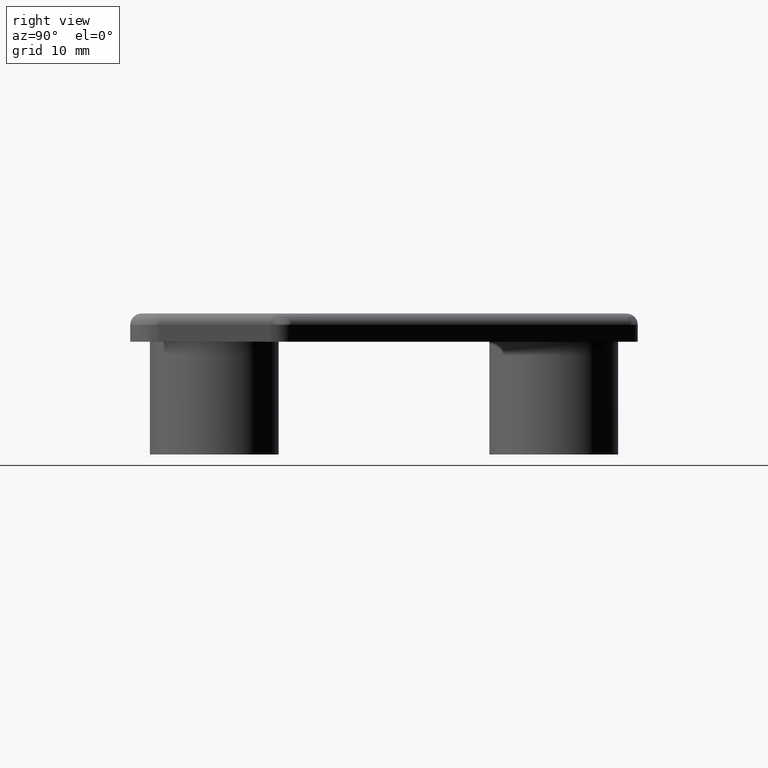
[diagram: clean part render]
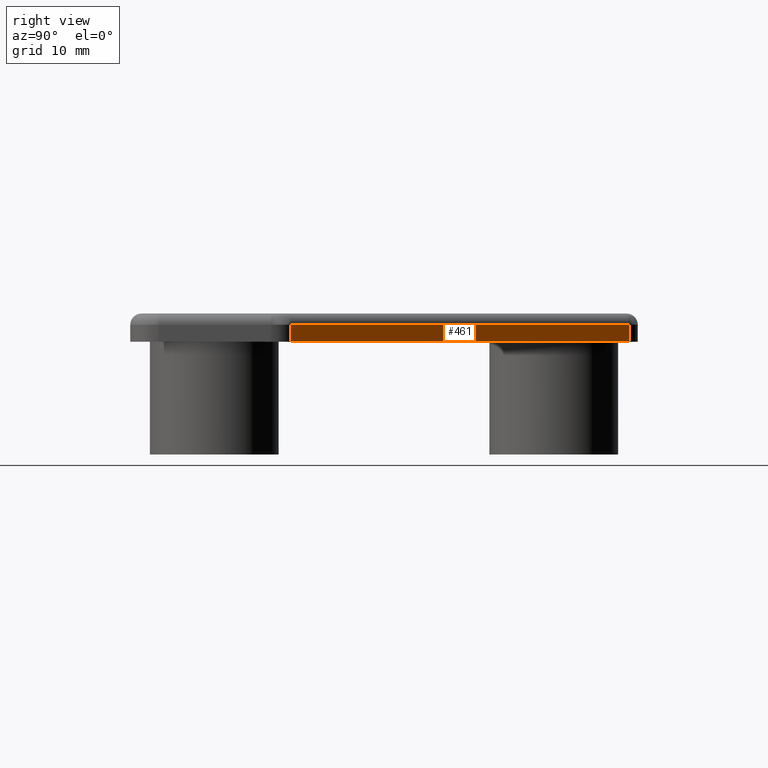
[diagram: same view with one face highlighted and labeled with its STEP entity id]
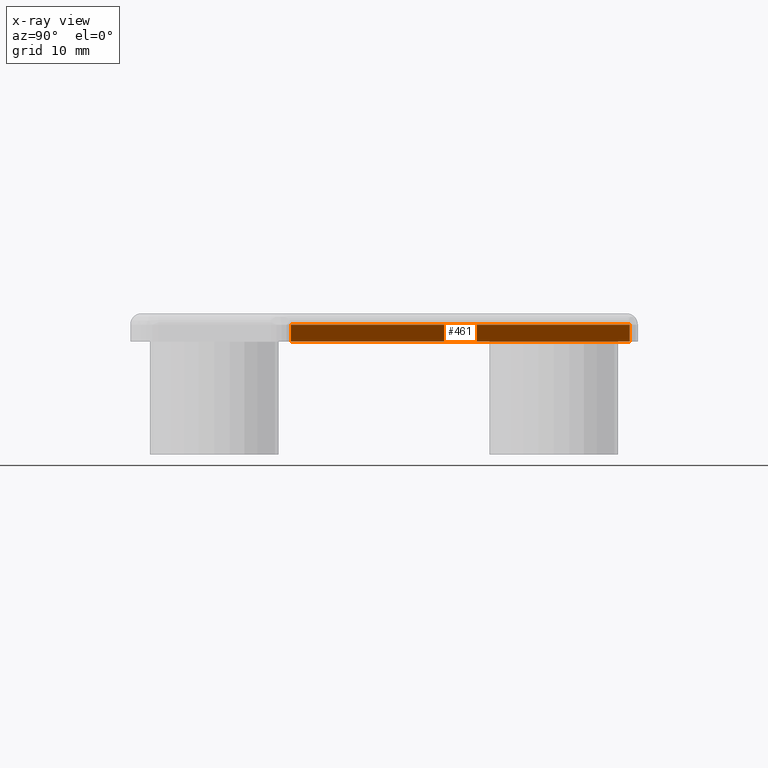
[diagram: x-ray of the same camera — body ghosted, the highlighted face saturated]
A machine part, right view. The second image highlights one B-rep face of the part: STEP entity #461.
The next image is the same camera in x-ray: the body ghosted, the highlighted face saturated — about 0% of this face is hidden behind the body in this view.
In plain terms, the highlighted planar face has unit normal (0.7071, 0.7071, 0).
Its self-contained STEP definition (entity closure, byte-faithful):
#53=FACE_OUTER_BOUND('',#90,.T.);
#90=EDGE_LOOP('',(#345,#346,#347,#348));
#168=LINE('',#733,#193);
#175=LINE('',#777,#200);
#176=LINE('',#779,#201);
#177=LINE('',#780,#202);
#193=VECTOR('',#571,42.4766603751637);
#200=VECTOR('',#614,1.49999999999);
#201=VECTOR('',#615,42.4766603751637);
#202=VECTOR('',#616,1.49999999999);
#221=VERTEX_POINT('',#730);
#222=VERTEX_POINT('',#732);
#241=VERTEX_POINT('',#776);
#242=VERTEX_POINT('',#778);
#263=EDGE_CURVE('',#222,#221,#168,.T.);
#283=EDGE_CURVE('',#221,#241,#175,.T.);
#284=EDGE_CURVE('',#242,#241,#176,.T.);
#285=EDGE_CURVE('',#222,#242,#177,.T.);
#345=ORIENTED_EDGE('',*,*,#263,.T.);
#346=ORIENTED_EDGE('',*,*,#283,.T.);
#347=ORIENTED_EDGE('',*,*,#284,.F.);
#348=ORIENTED_EDGE('',*,*,#285,.F.);
#448=PLANE('',#513);
#461=ADVANCED_FACE('',(#53),#448,.T.);
#513=AXIS2_PLACEMENT_3D('',#775,#612,#613);
#571=DIRECTION('',(-0.70710678118653,0.707106781186565,0.));
#612=DIRECTION('center_axis',(0.707106781186565,0.70710678118653,0.));
#613=DIRECTION('ref_axis',(0.,0.,-1.));
#614=DIRECTION('',(0.,0.,1.));
#615=DIRECTION('',(-0.70710678118653,0.707106781186565,0.));
#616=DIRECTION('',(0.,0.,1.));
#730=CARTESIAN_POINT('',(-8.26779039039797,44.2677235933797,0.));
#732=CARTESIAN_POINT('',(21.7677442030375,14.2321889999428,0.));
#733=CARTESIAN_POINT('',(21.7677442030375,14.2321889999428,0.));
#775=CARTESIAN_POINT('Origin',(21.7677442030375,14.2321889999428,0.));
#776=CARTESIAN_POINT('',(-8.26779039039797,44.2677235933797,1.49999999999));
#777=CARTESIAN_POINT('',(-8.26779039039797,44.2677235933797,0.));
#778=CARTESIAN_POINT('',(21.767744203038,14.2321889999433,1.49999999999));
#779=CARTESIAN_POINT('',(21.7677442030375,14.2321889999428,1.49999999999));
#780=CARTESIAN_POINT('',(21.7677442030375,14.2321889999428,0.));